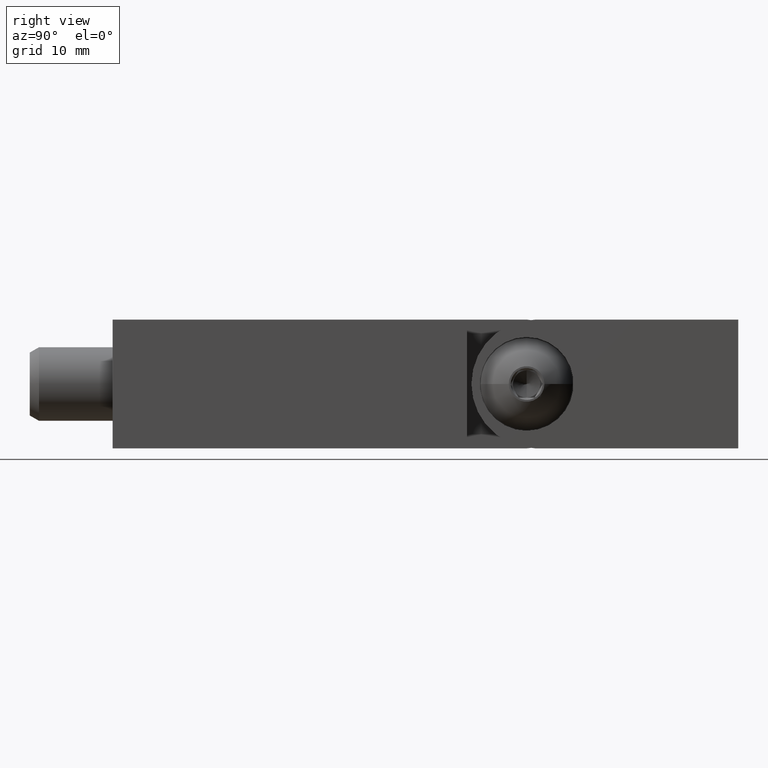
[diagram: clean part render]
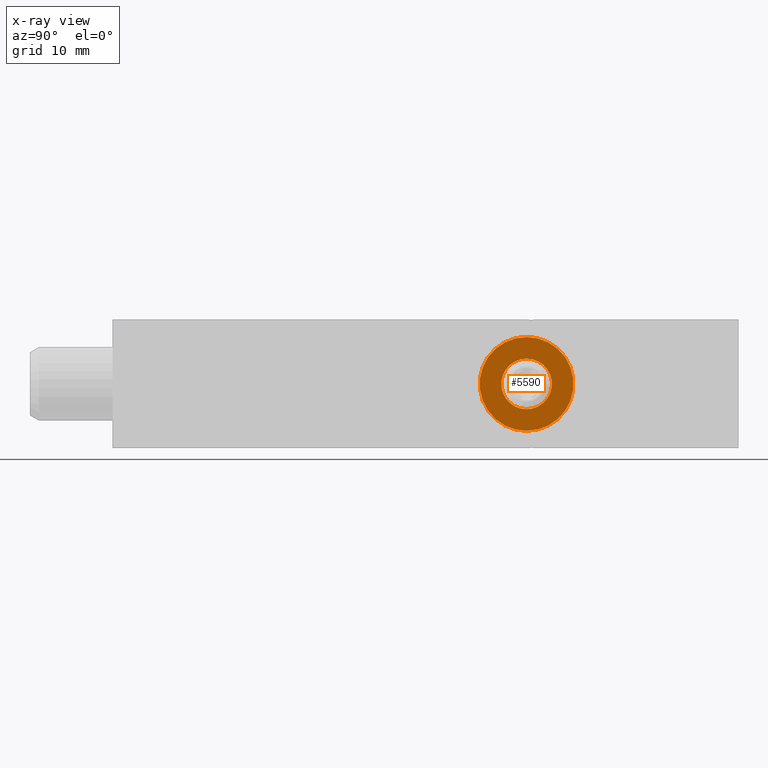
[diagram: x-ray — body ghosted, one internal face saturated and labeled with its STEP entity id]
A machine part, right view, then the same camera in x-ray: the body is ghosted and one INTERNAL B-rep face — a face not visible from any outside direction — is saturated and labeled: STEP entity #5590.
In plain terms, the highlighted planar face has unit normal (-1, -0, 0).
Its self-contained STEP definition (entity closure, byte-faithful):
#202 = VERTEX_POINT ( 'NONE', #7554 ) ;
#482 = DIRECTION ( 'NONE',  ( 2.551063935260013900E-016, 1.190496503121339700E-015, 1.000000000000000000 ) ) ;
#1568 = DIRECTION ( 'NONE',  ( -1.000000000000000000, 1.300472103211916500E-031, 2.168404344971009100E-016 ) ) ;
#1631 = EDGE_LOOP ( 'NONE', ( #9781, #12672 ) ) ;
#2248 = VERTEX_POINT ( 'NONE', #13401 ) ;
#2541 = AXIS2_PLACEMENT_3D ( 'NONE', #8440, #4983, #11823 ) ;
#2719 = DIRECTION ( 'NONE',  ( 2.551063935260013900E-016, 1.190496503121339700E-015, 1.000000000000000000 ) ) ;
#2978 = ORIENTED_EDGE ( 'NONE', *, *, #12618, .T. ) ;
#3127 = DIRECTION ( 'NONE',  ( 1.577021341797097800E-016, 1.261617073437678200E-015, 1.000000000000000000 ) ) ;
#3293 = CIRCLE ( 'NONE', #3689, 2.749999999999999100 ) ;
#3689 = AXIS2_PLACEMENT_3D ( 'NONE', #13372, #12956, #13543 ) ;
#3848 = PLANE ( 'NONE',  #2541 ) ;
#4521 = CIRCLE ( 'NONE', #14083, 2.749999999999999100 ) ;
#4867 = CIRCLE ( 'NONE', #7809, 5.099999999999993400 ) ;
#4983 = DIRECTION ( 'NONE',  ( 1.000000000000000000, -1.300472103211916900E-031, -2.168404344971009400E-016 ) ) ;
#5590 = ADVANCED_FACE ( 'NONE', ( #9468, #6245 ), #3848, .F. ) ;
#6245 = FACE_OUTER_BOUND ( 'NONE', #12226, .T. ) ;
#6382 = CARTESIAN_POINT ( 'NONE',  ( -3.499999999999997300, 6.000000000000069300, -5.099999999999993400 ) ) ;
#7148 = CIRCLE ( 'NONE', #7945, 5.099999999999993400 ) ;
#7301 = CARTESIAN_POINT ( 'NONE',  ( -3.499999999999996000, 6.000000000000071100, 0.0000000000000000000 ) ) ;
#7554 = CARTESIAN_POINT ( 'NONE',  ( -3.499999999999995600, 6.000000000000074600, 2.749999999999999100 ) ) ;
#7749 = EDGE_CURVE ( 'NONE', #202, #2248, #4521, .T. ) ;
#7809 = AXIS2_PLACEMENT_3D ( 'NONE', #7301, #1568, #2719 ) ;
#7826 = ORIENTED_EDGE ( 'NONE', *, *, #7958, .T. ) ;
#7892 = VERTEX_POINT ( 'NONE', #13816 ) ;
#7945 = AXIS2_PLACEMENT_3D ( 'NONE', #14209, #14113, #482 ) ;
#7958 = EDGE_CURVE ( 'NONE', #7892, #8671, #4867, .T. ) ;
#8099 = EDGE_CURVE ( 'NONE', #2248, #202, #3293, .T. ) ;
#8440 = CARTESIAN_POINT ( 'NONE',  ( -3.499999999999996000, 8.750000000000072800, 0.0000000000000000000 ) ) ;
#8671 = VERTEX_POINT ( 'NONE', #6382 ) ;
#8799 = DIRECTION ( 'NONE',  ( -1.000000000000000000, 1.300472103211916500E-031, 2.168404344971009100E-016 ) ) ;
#9468 = FACE_BOUND ( 'NONE', #1631, .T. ) ;
#9781 = ORIENTED_EDGE ( 'NONE', *, *, #7749, .F. ) ;
#11823 = DIRECTION ( 'NONE',  ( -2.168404344971009400E-016, -1.221245327087675000E-015, -1.000000000000000000 ) ) ;
#12226 = EDGE_LOOP ( 'NONE', ( #7826, #2978 ) ) ;
#12227 = CARTESIAN_POINT ( 'NONE',  ( -3.499999999999996000, 6.000000000000071100, 0.0000000000000000000 ) ) ;
#12618 = EDGE_CURVE ( 'NONE', #8671, #7892, #7148, .T. ) ;
#12672 = ORIENTED_EDGE ( 'NONE', *, *, #8099, .F. ) ;
#12956 = DIRECTION ( 'NONE',  ( -1.000000000000000000, 1.300472103211916500E-031, 2.168404344971009100E-016 ) ) ;
#13372 = CARTESIAN_POINT ( 'NONE',  ( -3.499999999999996000, 6.000000000000071100, 0.0000000000000000000 ) ) ;
#13401 = CARTESIAN_POINT ( 'NONE',  ( -3.499999999999996400, 6.000000000000071900, -2.749999999999999100 ) ) ;
#13543 = DIRECTION ( 'NONE',  ( 1.577021341797097800E-016, 1.261617073437678200E-015, 1.000000000000000000 ) ) ;
#13816 = CARTESIAN_POINT ( 'NONE',  ( -3.499999999999994700, 6.000000000000077300, 5.099999999999993400 ) ) ;
#14083 = AXIS2_PLACEMENT_3D ( 'NONE', #12227, #8799, #3127 ) ;
#14113 = DIRECTION ( 'NONE',  ( -1.000000000000000000, 1.300472103211916500E-031, 2.168404344971009100E-016 ) ) ;
#14209 = CARTESIAN_POINT ( 'NONE',  ( -3.499999999999996000, 6.000000000000071100, 0.0000000000000000000 ) ) ;